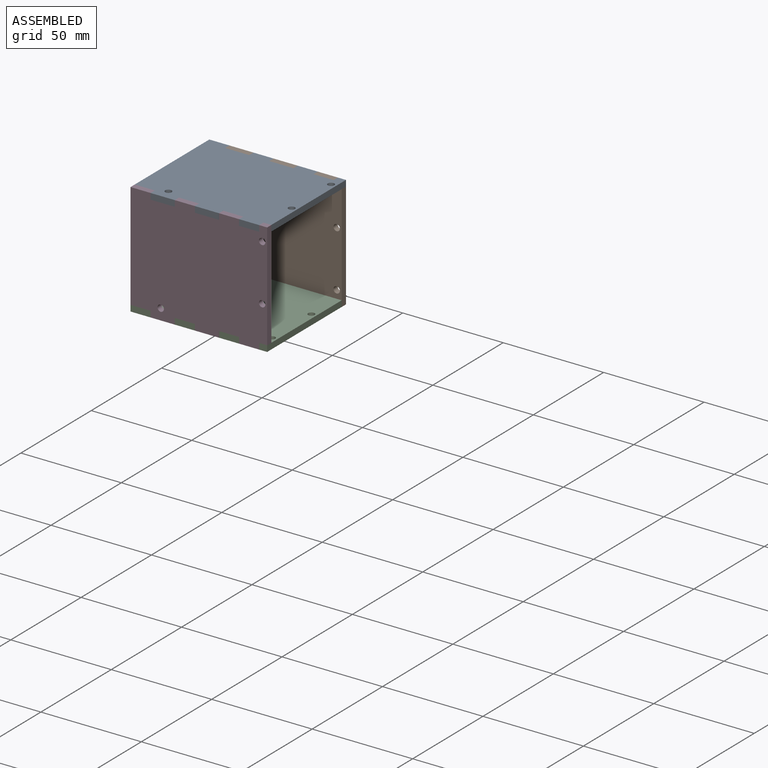
[diagram: assembled view]
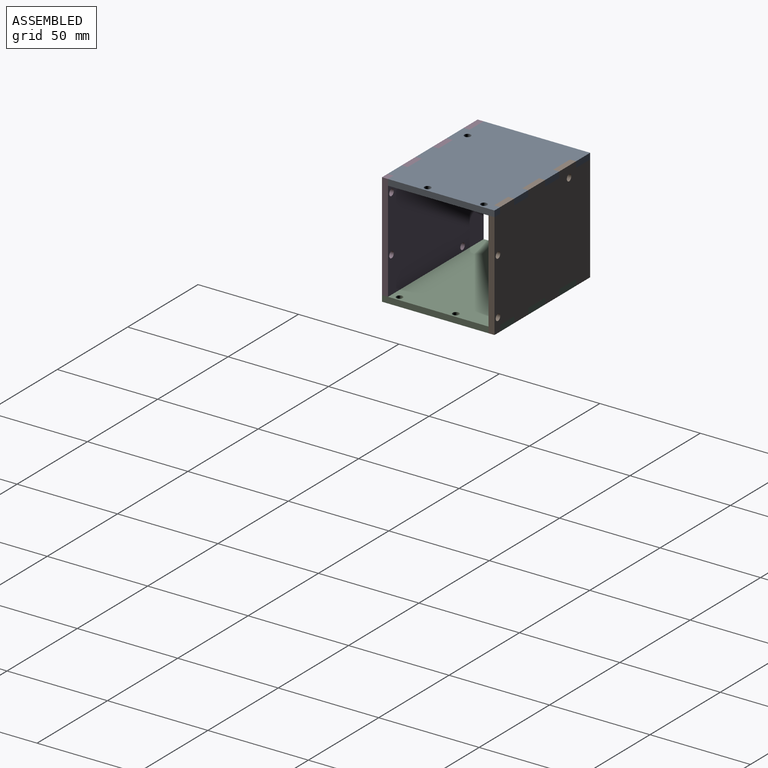
[diagram: assembled view, second angle]
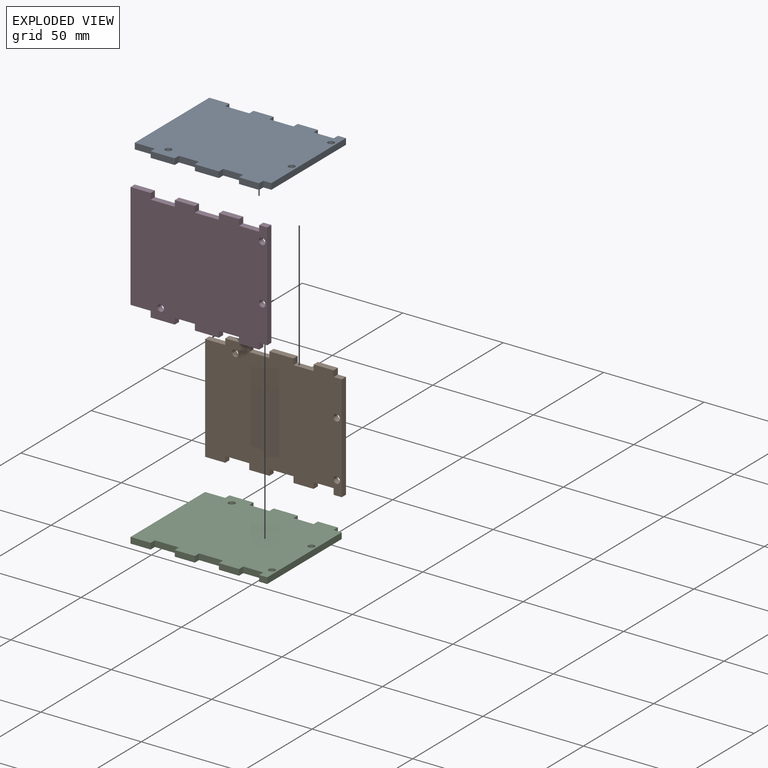
[diagram: exploded view]
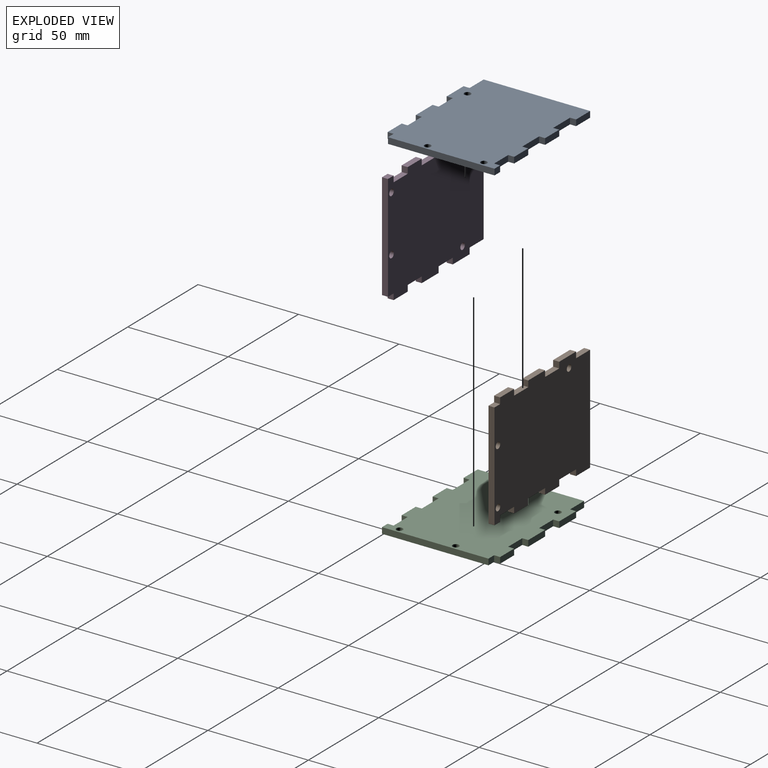
[diagram: exploded view, second angle]
ASSEMBLY  parts=4 mates=3
PART A: 33 faces, bbox 68x56x3 mm
  f0: plane 10x3mm, normal (0,-1,0), area 30mm2, adj f1,f30,f31,f32
  f1: plane 3x3mm, normal (1,0,0), area 9mm2, adj f0,f2,f31,f32
  f2: plane 12x3mm, normal (0,-1,0), area 36mm2, adj f1,f3,f31,f32
  f3: plane 3x3mm, normal (-1,0,0), area 9mm2, adj f2,f4,f31,f32
  f4: plane 10x3mm, normal (0,-1,0), area 30mm2, adj f3,f5,f31,f32
  f5: plane 3x3mm, normal (1,0,0), area 9mm2, adj f4,f6,f31,f32
  f6: plane 12x3mm, normal (0,-1,0), area 36mm2, adj f5,f7,f31,f32
  f7: plane 3x3mm, normal (-1,0,0), area 9mm2, adj f6,f8,f31,f32
  f8: plane 10x3mm, normal (0,-1,0), area 30mm2, adj f7,f9,f31,f32
  f9: plane 3x3mm, normal (1,0,0), area 9mm2, adj f8,f10,f31,f32
  f10: plane 10x3mm, normal (0,-1,0), area 30mm2, adj f9,f11,f31,f32
  f11: plane 3x3mm, normal (-1,0,0), area 9mm2, adj f10,f12,f31,f32
  f12: plane 4x3mm, normal (0,-1,0), area 12mm2, adj f11,f13,f31,f32
  f13: plane 53x3mm, normal (1,0,0), area 159mm2, adj f12,f14,f31,f32
  f14: plane 4x3mm, normal (0,1,0), area 12mm2, adj f13,f15,f31,f32
  f15: plane 3x3mm, normal (1,0,0), area 9mm2, adj f14,f16,f31,f32
  f16: plane 10x3mm, normal (0,1,0), area 30mm2, adj f15,f17,f31,f32
  f17: plane 3x3mm, normal (-1,0,0), area 9mm2, adj f16,f18,f31,f32
  f18: plane 10x3mm, normal (0,1,0), area 30mm2, adj f17,f19,f31,f32
  f19: plane 3x3mm, normal (1,0,0), area 9mm2, adj f18,f20,f31,f32
  f20: plane 12x3mm, normal (0,1,0), area 36mm2, adj f19,f21,f31,f32
  f21: plane 3x3mm, normal (-1,0,0), area 9mm2, adj f20,f22,f31,f32
  f22: plane 10x3mm, normal (0,1,0), area 30mm2, adj f21,f23,f31,f32
  f23: plane 3x3mm, normal (1,0,0), area 9mm2, adj f22,f24,f31,f32
  f24: plane 12x3mm, normal (0,1,0), area 36mm2, adj f23,f25,f31,f32
  f25: plane 3x3mm, normal (-1,0,0), area 9mm2, adj f24,f26,f31,f32
  f26: plane 10x3mm, normal (0,1,0), area 30mm2, adj f25,f30,f31,f32
  f27: cylinder r=1.6mm len=3.2mm, axis (0,0,1), area 30.2mm2, adj f31,f32
  f28: cylinder r=1.6mm len=3.2mm, axis (0,0,1), area 30.2mm2, adj f31,f32
  f29: cylinder r=1.6mm len=3.2mm, axis (0,0,1), area 30.2mm2, adj f31,f32
  f30: plane 53x3mm, normal (-1,0,0), area 159mm2, adj f0,f26,f31,f32
  f31: plane 68x56mm, normal (0,0,-1), area 3579.9mm2, adj f0,f1,f2,f3,f4,f5,f6,f7
  f32: plane 68x56mm, normal (0,0,1), area 3579.9mm2, adj f0,f1,f2,f3,f4,f5,f6,f7
PART B: same geometry as A
PART C: same geometry as A
PART D: same geometry as A
PLACE A rot(axis=(-1,0,0),180deg) t=(-27.31,-19.2,71.8)mm
PLACE B rot(axis=(1,0,0),90deg) t=(-27.31,4.3,45.3)mm
PLACE C t=(-27.31,-22.2,21.8)mm
PLACE D rot(axis=(-1,0,0),90deg) t=(-27.31,-45.7,48.3)mm
MATE fastened C.f1 <-> D.f25  axis (1,0,0) through (-51.31,-47.2,20.3)mm
MATE fastened B.f25 <-> A.f1  axis (-1,0,0) through (-51.31,5.8,73.3)mm
MATE fastened B.f1 <-> C.f25  axis (1,0,0) through (-51.31,5.8,20.3)mm
